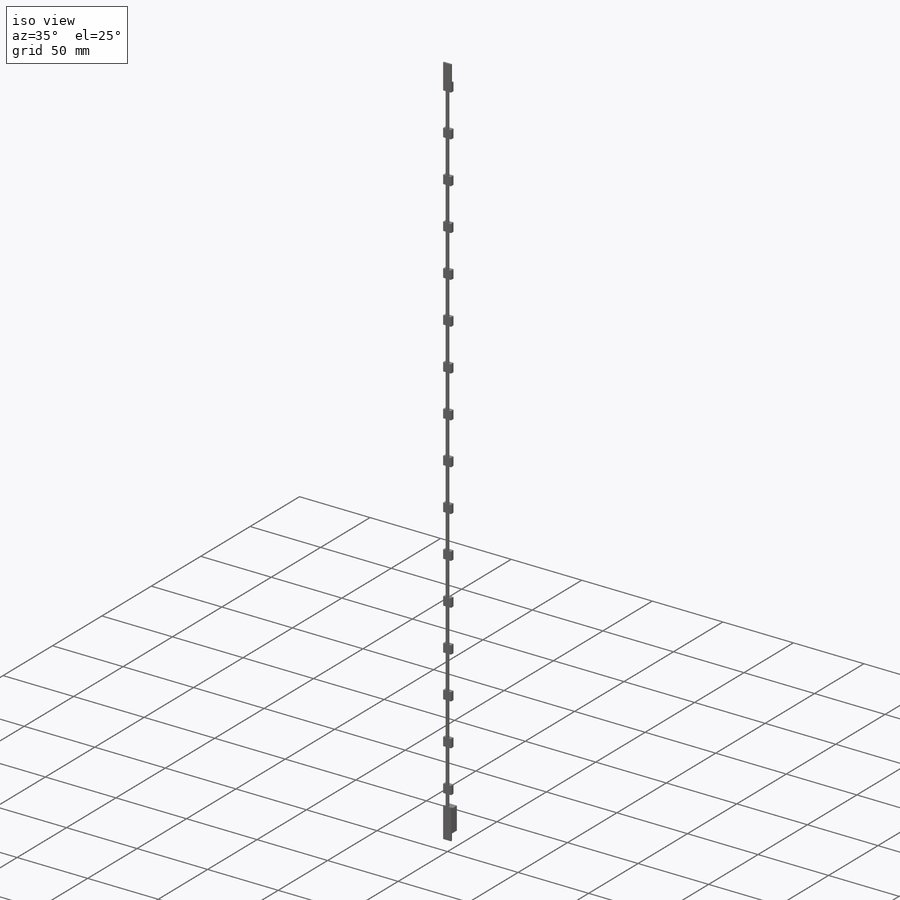
[diagram: iso view]
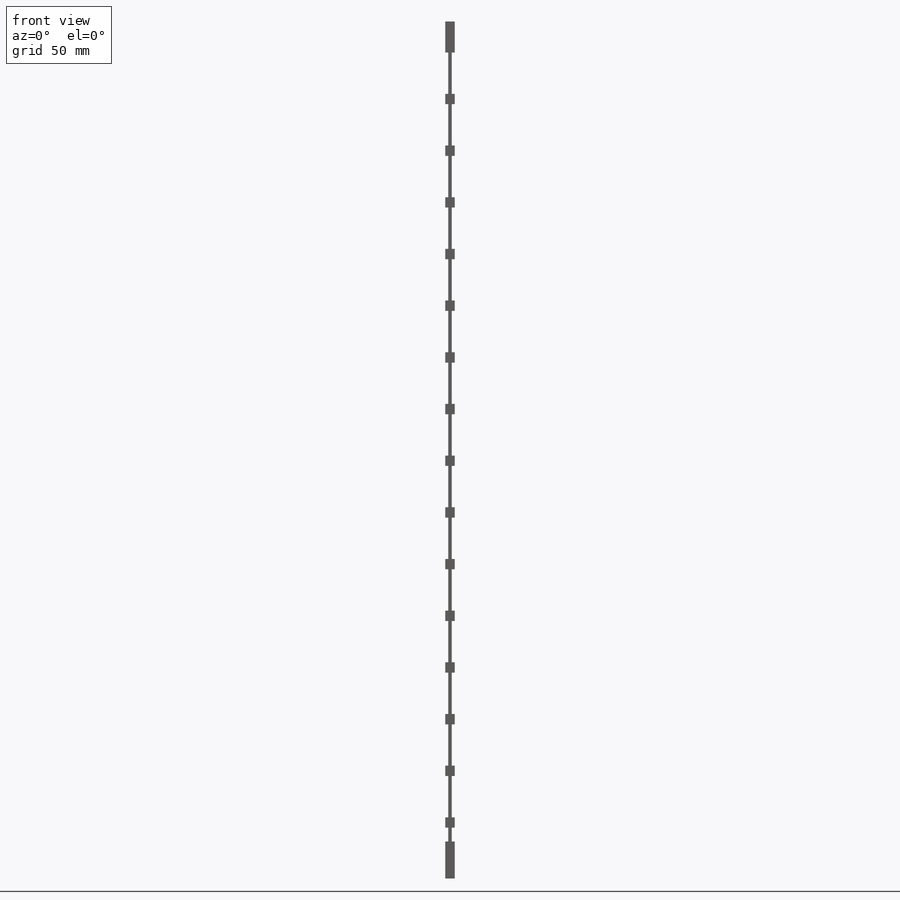
[diagram: front view]
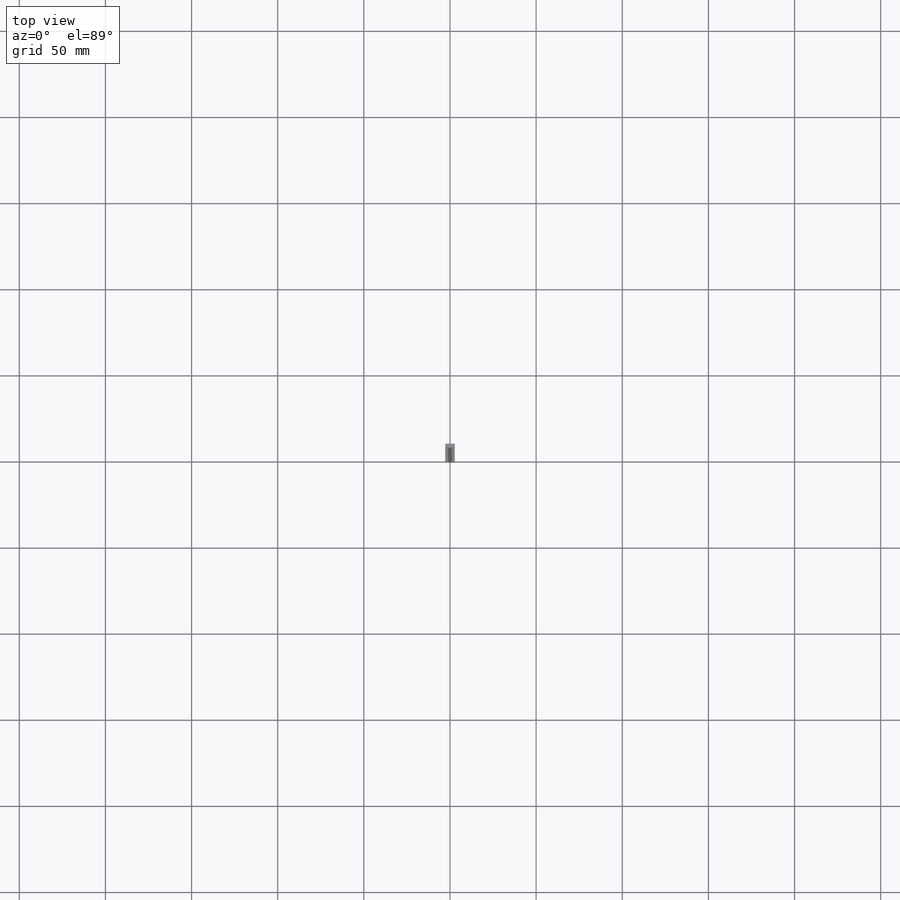
[diagram: top view]
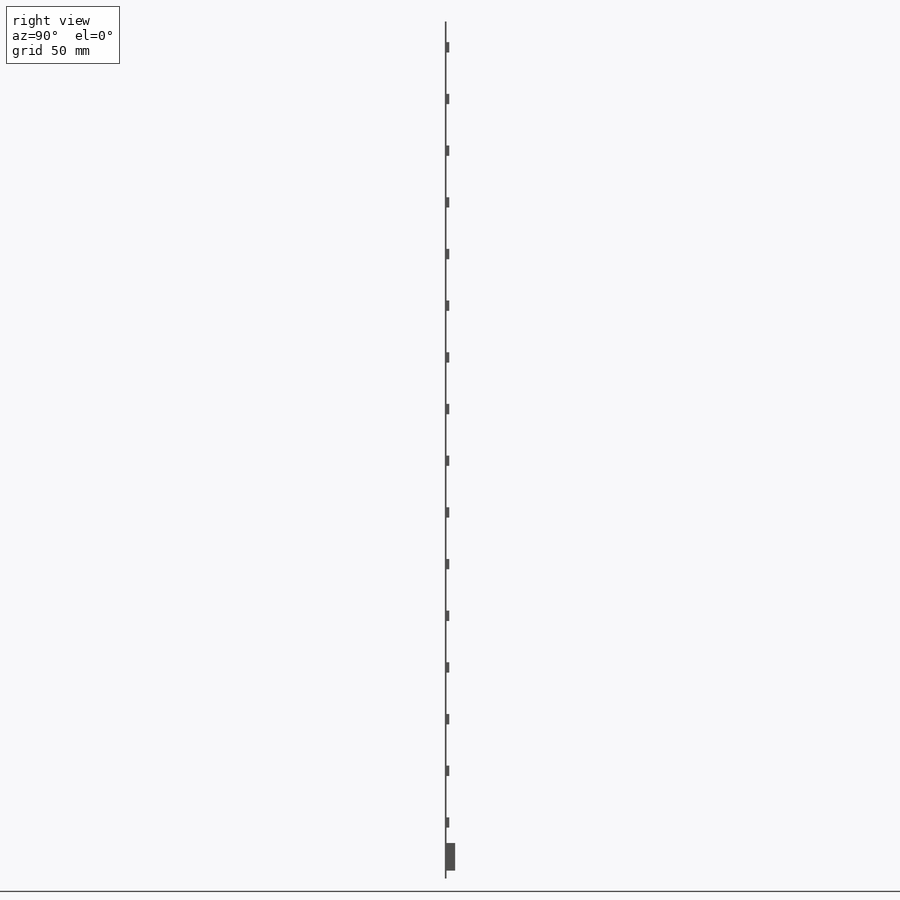
[diagram: right view]
SOLIDWORKS PART (.sldprt)
format: sldprt  version: not decoded by parser v0  size: 465,920 bytes
history: native  units: mm
features: sketch x6, extrude x5, material x1, pattern_linear x1, cut_extrude x1 (+16 scaffold rows collapsed)
feature tree (30):
  scaffold x16  (default folders/planes/origin — collapsed)
  material  "Material <not specified>"
  sketch  "Sketch2"  dims[D1=5.58mm D2=21.51mm]
  extrude  "Boss-Extrude1"  Depth=1mm
  sketch  "Sketch3"  dims[D1=5.58mm D2=2.0mm D3=31.0mm D4=32.51mm D5=6.0mm]
  extrude  "Boss-Extrude2"  Depth=1mm
  sketch  "Sketch4"
  extrude  "Boss-Extrude3"  Depth=2.6mm
  pattern_linear  "LPattern1"  Count1=16 Count2=1 Spacing1=30mm Spacing2=10mm
  sketch  "Sketch5"  dims[D1=1.0mm]
  extrude  "Boss-Extrude4"  Depth=12mm
  sketch  "Sketch9"  dims[D1=16.0mm D2=2.5mm D3=3.4mm]
  extrude  "Boss-Extrude6"  Depth=5mm
  sketch  "Sketch10"  dims[c1.D1=1.2mm c1.D2=1.0mm c1.D3=3.0mm c2.D1=1.2mm c2.D2=3.0mm c2.D3=1.0mm]
  cut_extrude  "Cut-Extrude1"  [1 undecoded]
decode coverage: 11 of 13 modeling features carry decoded parameters
note: 1 parameter value undecoded
note: suppression state not decoded; provenance and decode notes live in map.json
